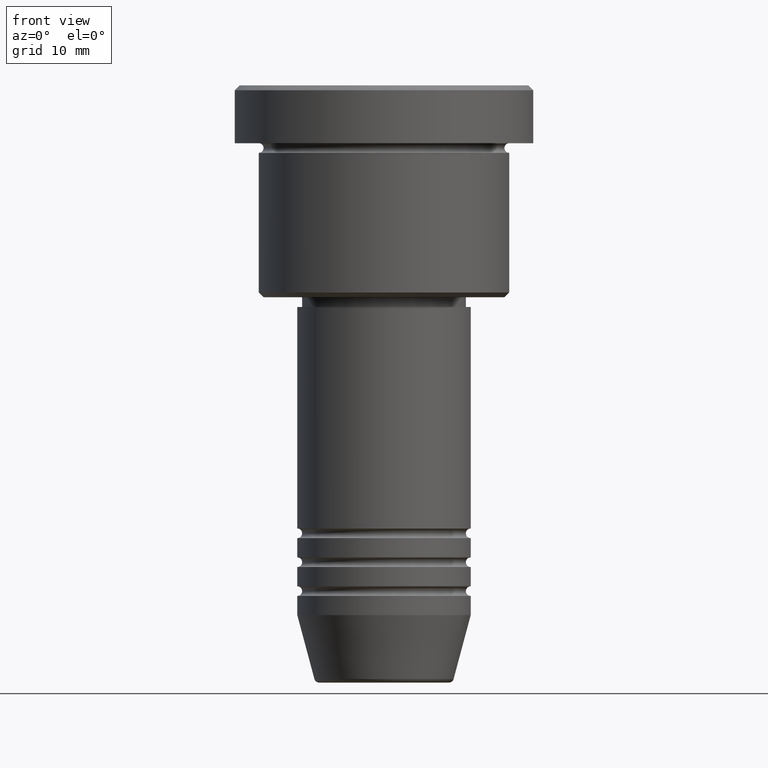
[diagram: clean part render]
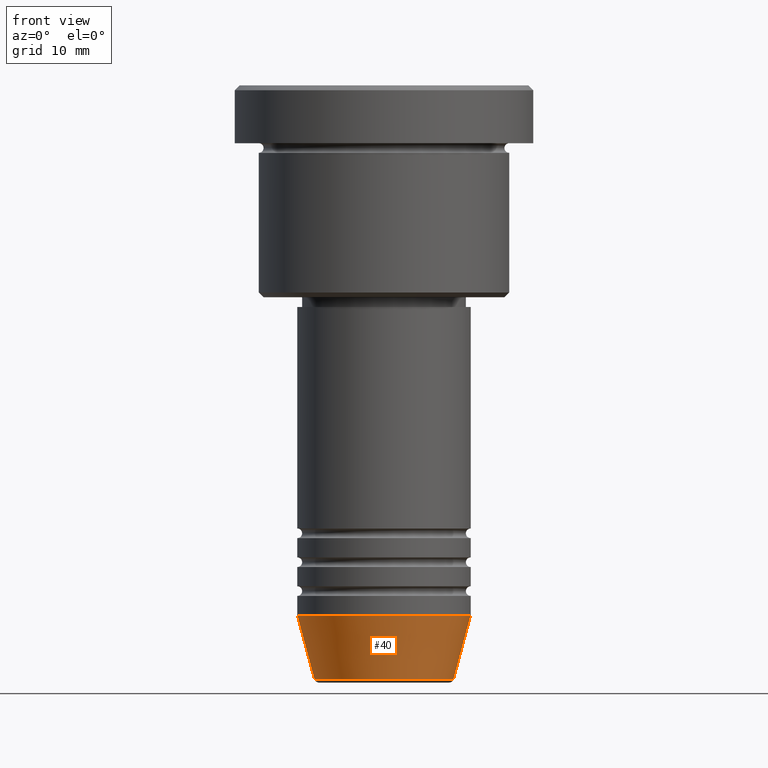
[diagram: same view with one face highlighted and labeled with its STEP entity id]
A machine part, front view. The second image highlights one B-rep face of the part: STEP entity #40.
In plain terms, the highlighted conical surface has half-angle 15 deg.
Its self-contained STEP definition (entity closure, byte-faithful):
#21 = DIRECTION ( 'NONE',  ( -0.000000000000000000, -0.000000000000000000, 1.000000000000000000 ) ) ;
#35 = AXIS2_PLACEMENT_3D ( 'NONE', #240, #987, #1151 ) ;
#40 = ADVANCED_FACE ( 'NONE', ( #640 ), #670, .T. ) ;
#107 = DIRECTION ( 'NONE',  ( 0.2588190451025213501, 0.000000000000000000, 0.9659258262890680902 ) ) ;
#142 = CARTESIAN_POINT ( 'NONE',  ( -7.223655072137191269, 9.934123627281767082E-16, -61.62940952255126348 ) ) ;
#144 = ORIENTED_EDGE ( 'NONE', *, *, #561, .T. ) ;
#172 = AXIS2_PLACEMENT_3D ( 'NONE', #333, #634, #529 ) ;
#236 = ORIENTED_EDGE ( 'NONE', *, *, #650, .F. ) ;
#240 = CARTESIAN_POINT ( 'NONE',  ( 0.000000000000000000, 0.000000000000000000, -55.00000000000000000 ) ) ;
#333 = CARTESIAN_POINT ( 'NONE',  ( 0.000000000000000000, 0.000000000000000000, -55.00000000000000000 ) ) ;
#376 = DIRECTION ( 'NONE',  ( -0.2588190451025213501, 3.169619151431772337E-17, 0.9659258262890680902 ) ) ;
#471 = CARTESIAN_POINT ( 'NONE',  ( -9.000000000000000000, 1.102182119232617714E-15, -55.00000000000000000 ) ) ;
#490 = VECTOR ( 'NONE', #376, 1000.000000000000000 ) ;
#506 = VERTEX_POINT ( 'NONE', #540 ) ;
#529 = DIRECTION ( 'NONE',  ( 1.000000000000000000, 0.000000000000000000, 0.000000000000000000 ) ) ;
#540 = CARTESIAN_POINT ( 'NONE',  ( 9.000000000000000000, 0.000000000000000000, -55.00000000000000000 ) ) ;
#561 = EDGE_CURVE ( 'NONE', #819, #801, #806, .T. ) ;
#634 = DIRECTION ( 'NONE',  ( -0.000000000000000000, -0.000000000000000000, 1.000000000000000000 ) ) ;
#640 = FACE_OUTER_BOUND ( 'NONE', #679, .T. ) ;
#650 = EDGE_CURVE ( 'NONE', #819, #1050, #677, .T. ) ;
#670 = CONICAL_SURFACE ( 'NONE', #172, 9.000000000000000000, 0.2617993877991500740 ) ;
#677 = LINE ( 'NONE', #471, #490 ) ;
#679 = EDGE_LOOP ( 'NONE', ( #236, #144, #1001, #1010 ) ) ;
#726 = EDGE_CURVE ( 'NONE', #1050, #506, #1089, .T. ) ;
#773 = LINE ( 'NONE', #1031, #831 ) ;
#779 = CARTESIAN_POINT ( 'NONE',  ( 7.223655072137190380, 0.000000000000000000, -61.62940952255126348 ) ) ;
#801 = VERTEX_POINT ( 'NONE', #779 ) ;
#806 = CIRCLE ( 'NONE', #814, 7.223655072137190380 ) ;
#814 = AXIS2_PLACEMENT_3D ( 'NONE', #853, #21, #1117 ) ;
#819 = VERTEX_POINT ( 'NONE', #142 ) ;
#831 = VECTOR ( 'NONE', #107, 1000.000000000000000 ) ;
#853 = CARTESIAN_POINT ( 'NONE',  ( 0.000000000000000000, 0.000000000000000000, -61.62940952255126348 ) ) ;
#942 = CARTESIAN_POINT ( 'NONE',  ( -9.000000000000000000, 1.102182119232617714E-15, -55.00000000000000000 ) ) ;
#987 = DIRECTION ( 'NONE',  ( -0.000000000000000000, -0.000000000000000000, 1.000000000000000000 ) ) ;
#1001 = ORIENTED_EDGE ( 'NONE', *, *, #1078, .T. ) ;
#1010 = ORIENTED_EDGE ( 'NONE', *, *, #726, .F. ) ;
#1031 = CARTESIAN_POINT ( 'NONE',  ( 9.000000000000000000, 0.000000000000000000, -55.00000000000000000 ) ) ;
#1050 = VERTEX_POINT ( 'NONE', #942 ) ;
#1078 = EDGE_CURVE ( 'NONE', #801, #506, #773, .T. ) ;
#1089 = CIRCLE ( 'NONE', #35, 9.000000000000000000 ) ;
#1117 = DIRECTION ( 'NONE',  ( 1.000000000000000000, 0.000000000000000000, 0.000000000000000000 ) ) ;
#1151 = DIRECTION ( 'NONE',  ( 1.000000000000000000, 0.000000000000000000, 0.000000000000000000 ) ) ;